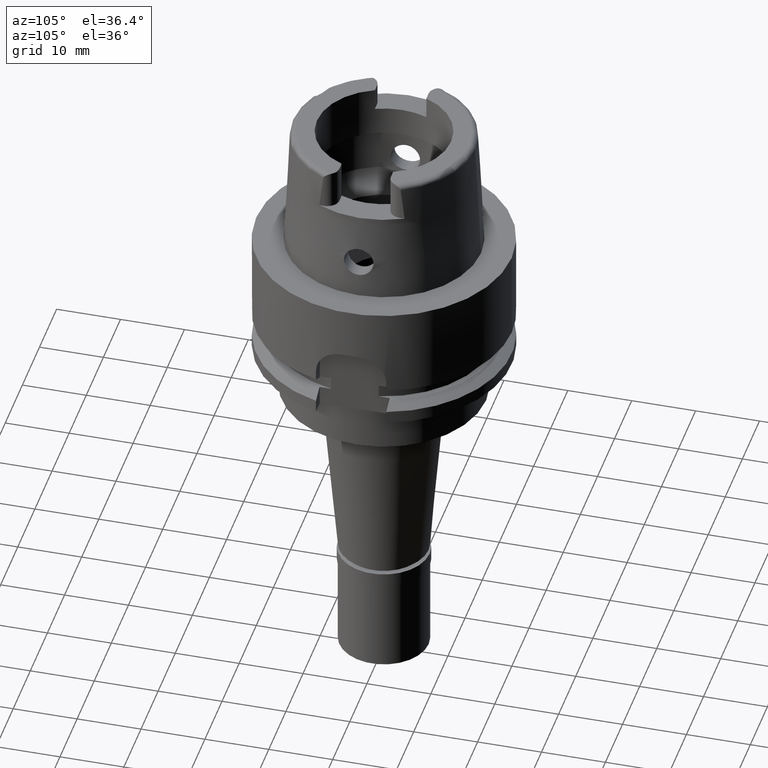
[diagram: clean part render]
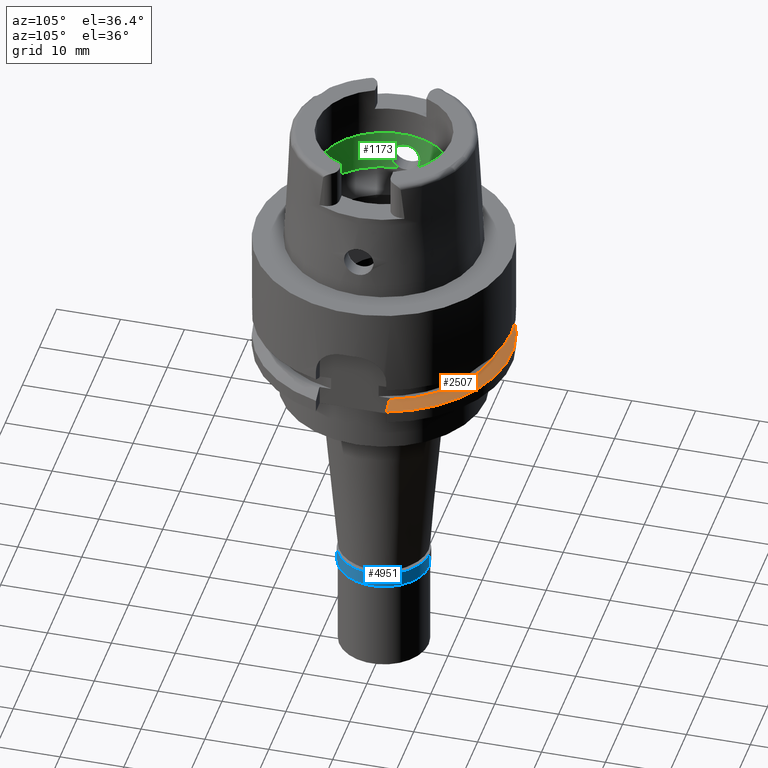
[diagram: same view with three faces highlighted in distinct colors, each labeled with its STEP entity id]
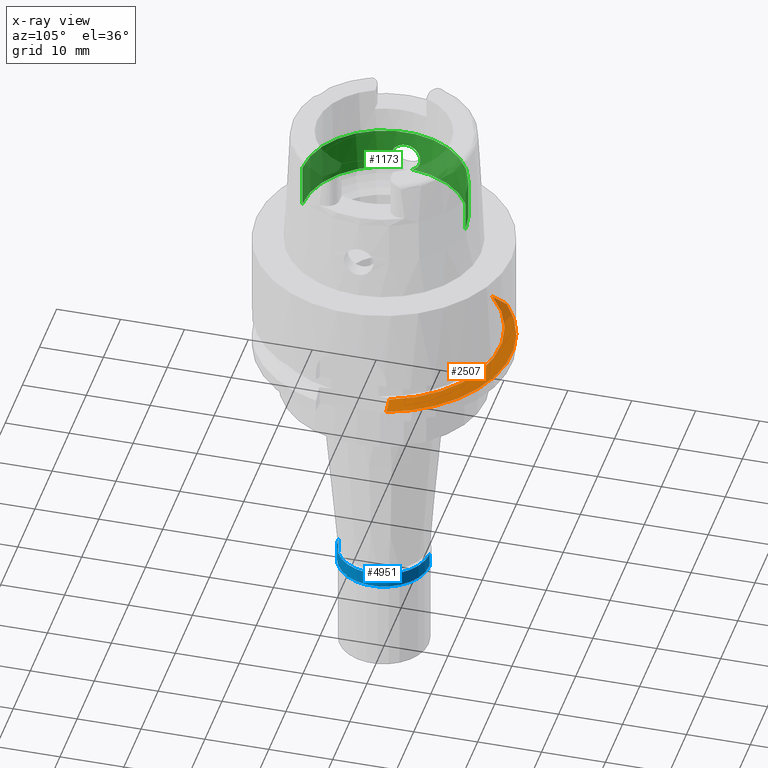
[diagram: x-ray of the same camera — body ghosted, the three highlighted faces saturated]
A machine part, auxiliary view with three faces highlighted in distinct colors.
The next image is the same camera in x-ray (body ghosted, the three faces saturated) — at least one of them is partly hidden behind the body in this view.
Their STEP definitions:

[orange] entity #2507 — the highlighted conical surface has half-angle 60 deg.
#141 = CIRCLE ( 'NONE', #2425, 18.23205080757000118 ) ;
#629 = VERTEX_POINT ( 'NONE', #1734 ) ;
#657 = CARTESIAN_POINT ( 'NONE',  ( 17.98589097578000207, 5.500000224926999692, -17.33238542091000056 ) ) ;
#768 = B_SPLINE_CURVE_WITH_KNOTS ( 'NONE', 3,
 ( #2679, #2593, #1846, #657, #3482, #2726 ),
 .UNSPECIFIED., .F., .F.,
 ( 4, 1, 1, 4 ),
 ( 0.0000000000000000000, 0.3333333333333000081, 0.6666666666667000474, 1.000000000000000000 ),
 .UNSPECIFIED. ) ;
#884 = FACE_OUTER_BOUND ( 'NONE', #2700, .T. ) ;
#903 = AXIS2_PLACEMENT_3D ( 'NONE', #4914, #1765, #2153 ) ;
#1211 = EDGE_CURVE ( 'NONE', #2823, #3265, #768, .T. ) ;
#1512 = CARTESIAN_POINT ( 'NONE',  ( 0.0000000000000000000, 1.010206699502999904E-14, -17.00000000000000000 ) ) ;
#1534 = B_SPLINE_CURVE_WITH_KNOTS ( 'NONE', 3,
 ( #5041, #3440, #3042, #4721 ),
 .UNSPECIFIED., .F., .F.,
 ( 4, 4 ),
 ( 0.0000000000000000000, 1.000000000000000000 ),
 .UNSPECIFIED. ) ;
#1734 = CARTESIAN_POINT ( 'NONE',  ( -11.99999819327999973, 16.00000135504000198, -18.02071908005000367 ) ) ;
#1765 = DIRECTION ( 'NONE',  ( 0.0000000000000000000, 0.0000000000000000000, -1.000000000000000000 ) ) ;
#1841 = ORIENTED_EDGE ( 'NONE', *, *, #4741, .T. ) ;
#1846 = CARTESIAN_POINT ( 'NONE',  ( 18.60128256371000077, 5.499999979625999735, -17.67263978635000043 ) ) ;
#1929 = AXIS2_PLACEMENT_3D ( 'NONE', #4569, #3737, #3686 ) ;
#2007 = CIRCLE ( 'NONE', #903, 20.00000000000000000 ) ;
#2153 = DIRECTION ( 'NONE',  ( -0.5999999999999999778, 0.8000000000000000444, 0.0000000000000000000 ) ) ;
#2425 = AXIS2_PLACEMENT_3D ( 'NONE', #1512, #4720, #4773 ) ;
#2507 = ADVANCED_FACE ( 'NONE', ( #884 ), #3291, .T. ) ;
#2570 = EDGE_CURVE ( 'NONE', #629, #2823, #2007, .T. ) ;
#2593 = CARTESIAN_POINT ( 'NONE',  ( 19.01852023937000169, 5.499999897587000142, -17.90395393955000003 ) ) ;
#2679 = CARTESIAN_POINT ( 'NONE',  ( 19.22888455231999671, 5.499999897587000142, -18.02072508398000039 ) ) ;
#2700 = EDGE_LOOP ( 'NONE', ( #1841, #3948, #4001, #2783 ) ) ;
#2726 = CARTESIAN_POINT ( 'NONE',  ( 17.38269052017999883, 5.499999488751999621, -17.00000000000000000 ) ) ;
#2783 = ORIENTED_EDGE ( 'NONE', *, *, #2570, .F. ) ;
#2823 = VERTEX_POINT ( 'NONE', #3477 ) ;
#3042 = CARTESIAN_POINT ( 'NONE',  ( -11.99998262259943616, 14.45496553786137106, -17.31677611851453946 ) ) ;
#3265 = VERTEX_POINT ( 'NONE', #4450 ) ;
#3291 = CONICAL_SURFACE ( 'NONE', #1929, 19.11602540378000015, 1.047197551196400456 ) ;
#3401 = EDGE_CURVE ( 'NONE', #3973, #3265, #141, .T. ) ;
#3440 = CARTESIAN_POINT ( 'NONE',  ( -11.99999639444755672, 15.21253450628815962, -17.65700993054392143 ) ) ;
#3477 = CARTESIAN_POINT ( 'NONE',  ( 19.22888455231999671, 5.499999897587000142, -18.02072508398000039 ) ) ;
#3482 = CARTESIAN_POINT ( 'NONE',  ( 17.58259270557999798, 5.499999488751999621, -17.11003686802000345 ) ) ;
#3686 = DIRECTION ( 'NONE',  ( 0.0000000000000000000, -1.000000000000000000, 0.0000000000000000000 ) ) ;
#3737 = DIRECTION ( 'NONE',  ( 0.0000000000000000000, 0.0000000000000000000, -1.000000000000000000 ) ) ;
#3948 = ORIENTED_EDGE ( 'NONE', *, *, #3401, .T. ) ;
#3973 = VERTEX_POINT ( 'NONE', #5199 ) ;
#4001 = ORIENTED_EDGE ( 'NONE', *, *, #1211, .F. ) ;
#4450 = CARTESIAN_POINT ( 'NONE',  ( 17.38269052017999883, 5.499999488751999621, -17.00000000000000000 ) ) ;
#4569 = CARTESIAN_POINT ( 'NONE',  ( 0.0000000000000000000, 1.010206699502999904E-14, -17.51036297107999928 ) ) ;
#4720 = DIRECTION ( 'NONE',  ( 0.0000000000000000000, 0.0000000000000000000, -1.000000000000000000 ) ) ;
#4721 = CARTESIAN_POINT ( 'NONE',  ( -11.99999138309999935, 13.72624503115999950, -17.00000000000000000 ) ) ;
#4741 = EDGE_CURVE ( 'NONE', #629, #3973, #1534, .T. ) ;
#4773 = DIRECTION ( 'NONE',  ( 0.0000000000000000000, 1.000000000000000000, 0.0000000000000000000 ) ) ;
#4914 = CARTESIAN_POINT ( 'NONE',  ( 0.0000000000000000000, 1.010206699502999904E-14, -18.02072594216000212 ) ) ;
#5041 = CARTESIAN_POINT ( 'NONE',  ( -11.99999819327999973, 16.00000135504000198, -18.02071908005000367 ) ) ;
#5199 = CARTESIAN_POINT ( 'NONE',  ( -11.99999138309999935, 13.72624503115999950, -17.00000000000000000 ) ) ;

[blue] entity #4951 — the highlighted cylindrical surface (partial cylindrical patch) has radius 7.15 mm, axis along (0, 0, 1).
#218 = EDGE_CURVE ( 'NONE', #1670, #2180, #3602, .T. ) ;
#376 = CARTESIAN_POINT ( 'NONE',  ( 0.0000000000000000000, 0.0000000000000000000, -17.85000000000000142 ) ) ;
#606 = CARTESIAN_POINT ( 'NONE',  ( 0.0000000000000000000, 0.0000000000000000000, 1.776356839399999922E-14 ) ) ;
#728 = CARTESIAN_POINT ( 'NONE',  ( 0.0000000000000000000, 7.150000000000000355, 1.776356839399999922E-14 ) ) ;
#748 = EDGE_CURVE ( 'NONE', #2180, #4247, #4462, .T. ) ;
#1189 = DIRECTION ( 'NONE',  ( 0.0000000000000000000, 0.0000000000000000000, 1.000000000000000000 ) ) ;
#1354 = CIRCLE ( 'NONE', #4089, 7.150000000000000355 ) ;
#1483 = CYLINDRICAL_SURFACE ( 'NONE', #5020, 7.150000000000000355 ) ;
#1513 = FACE_OUTER_BOUND ( 'NONE', #3161, .T. ) ;
#1627 = CARTESIAN_POINT ( 'NONE',  ( 0.0000000000000000000, -7.150000000000000355, 0.0000000000000000000 ) ) ;
#1670 = VERTEX_POINT ( 'NONE', #728 ) ;
#1676 = LINE ( 'NONE', #2498, #4749 ) ;
#1963 = DIRECTION ( 'NONE',  ( 0.0000000000000000000, 1.000000000000000000, 0.0000000000000000000 ) ) ;
#2180 = VERTEX_POINT ( 'NONE', #4129 ) ;
#2191 = DIRECTION ( 'NONE',  ( 0.0000000000000000000, 0.0000000000000000000, -1.000000000000000000 ) ) ;
#2498 = CARTESIAN_POINT ( 'NONE',  ( 0.0000000000000000000, 7.150000000000000355, 0.0000000000000000000 ) ) ;
#2602 = ORIENTED_EDGE ( 'NONE', *, *, #4957, .T. ) ;
#2923 = EDGE_CURVE ( 'NONE', #1670, #3069, #1676, .T. ) ;
#3011 = VECTOR ( 'NONE', #3765, 1000.000000000000000 ) ;
#3069 = VERTEX_POINT ( 'NONE', #4330 ) ;
#3161 = EDGE_LOOP ( 'NONE', ( #4072, #3883, #2602, #4966 ) ) ;
#3181 = AXIS2_PLACEMENT_3D ( 'NONE', #606, #2191, #3405 ) ;
#3228 = CARTESIAN_POINT ( 'NONE',  ( 0.0000000000000000000, 0.0000000000000000000, -2.299999999999999822 ) ) ;
#3405 = DIRECTION ( 'NONE',  ( 0.0000000000000000000, 1.000000000000000000, 0.0000000000000000000 ) ) ;
#3543 = DIRECTION ( 'NONE',  ( 0.0000000000000000000, 0.0000000000000000000, -1.000000000000000000 ) ) ;
#3550 = DIRECTION ( 'NONE',  ( 0.0000000000000000000, -1.000000000000000000, 0.0000000000000000000 ) ) ;
#3602 = CIRCLE ( 'NONE', #3181, 7.150000000000000355 ) ;
#3765 = DIRECTION ( 'NONE',  ( 0.0000000000000000000, 0.0000000000000000000, -1.000000000000000000 ) ) ;
#3883 = ORIENTED_EDGE ( 'NONE', *, *, #748, .T. ) ;
#3981 = DIRECTION ( 'NONE',  ( 0.0000000000000000000, 0.0000000000000000000, 1.000000000000000000 ) ) ;
#4072 = ORIENTED_EDGE ( 'NONE', *, *, #218, .T. ) ;
#4089 = AXIS2_PLACEMENT_3D ( 'NONE', #3228, #1189, #3550 ) ;
#4129 = CARTESIAN_POINT ( 'NONE',  ( 0.0000000000000000000, -7.150000000000000355, 1.776356839399999922E-14 ) ) ;
#4247 = VERTEX_POINT ( 'NONE', #5136 ) ;
#4330 = CARTESIAN_POINT ( 'NONE',  ( 0.0000000000000000000, 7.150000000000000355, -2.299999999999999822 ) ) ;
#4462 = LINE ( 'NONE', #1627, #3011 ) ;
#4749 = VECTOR ( 'NONE', #3543, 1000.000000000000000 ) ;
#4951 = ADVANCED_FACE ( 'NONE', ( #1513 ), #1483, .T. ) ;
#4957 = EDGE_CURVE ( 'NONE', #4247, #3069, #1354, .T. ) ;
#4966 = ORIENTED_EDGE ( 'NONE', *, *, #2923, .F. ) ;
#5020 = AXIS2_PLACEMENT_3D ( 'NONE', #376, #3981, #1963 ) ;
#5136 = CARTESIAN_POINT ( 'NONE',  ( 0.0000000000000000000, -7.150000000000000355, -2.299999999999999822 ) ) ;

[green] entity #1173 — the highlighted cylindrical surface (partial cylindrical patch) has radius 12.75 mm, axis along (0, 0, -1).
#12 = LINE ( 'NONE', #442, #573 ) ;
#147 = CARTESIAN_POINT ( 'NONE',  ( -12.58339085207465402, 2.054673809516300853, 4.966333112770533020 ) ) ;
#172 = CARTESIAN_POINT ( 'NONE',  ( -12.62890984003583661, 1.757197363155238001, 4.506232795585503936 ) ) ;
#175 = VERTEX_POINT ( 'NONE', #2455 ) ;
#192 = CARTESIAN_POINT ( 'NONE',  ( 0.0000000000000000000, 12.75000000000000000, 3.933312163512999504 ) ) ;
#213 = DIRECTION ( 'NONE',  ( 0.0000000000000000000, 1.000000000000000000, 0.0000000000000000000 ) ) ;
#226 = CARTESIAN_POINT ( 'NONE',  ( -12.75000000000000000, 0.0000000000000000000, 8.300000000000000711 ) ) ;
#252 = CARTESIAN_POINT ( 'NONE',  ( -12.58714353731488345, 2.031699938007257789, 7.078591831128857592 ) ) ;
#284 = CARTESIAN_POINT ( 'NONE',  ( -12.73074778830299003, -0.7001122496124811967, 8.190963658659171642 ) ) ;
#314 = CARTESIAN_POINT ( 'NONE',  ( -12.56851343450449932, -2.144397070127626037, 5.167733796194998952 ) ) ;
#329 = DIRECTION ( 'NONE',  ( 0.0000000000000000000, 0.0000000000000000000, -1.000000000000000000 ) ) ;
#338 = CARTESIAN_POINT ( 'NONE',  ( -12.69912736120991070, -1.137390012807617312, 8.000126845119376995 ) ) ;
#361 = CARTESIAN_POINT ( 'NONE',  ( -12.61490092618660164, -1.856081227164956271, 7.358680595117058409 ) ) ;
#367 = ORIENTED_EDGE ( 'NONE', *, *, #4309, .F. ) ;
#377 = AXIS2_PLACEMENT_3D ( 'NONE', #4269, #3864, #213 ) ;
#386 = CARTESIAN_POINT ( 'NONE',  ( -12.70998420979999999, -1.009356917307999923, 3.933312163512999504 ) ) ;
#411 = CARTESIAN_POINT ( 'NONE',  ( -12.61201834144508460, -1.875045042398655104, 7.332387545107639681 ) ) ;
#442 = CARTESIAN_POINT ( 'NONE',  ( 0.0000000000000000000, -12.75000000000000000, 3.933312163512999504 ) ) ;
#573 = VECTOR ( 'NONE', #3693, 1000.000000000000000 ) ;
#596 = CARTESIAN_POINT ( 'NONE',  ( 0.0000000000000000000, 12.75000000000000000, 10.69831216350999981 ) ) ;
#619 = CARTESIAN_POINT ( 'NONE',  ( -12.58060164487366883, 2.071512878578868566, 5.000554884107443421 ) ) ;
#648 = CARTESIAN_POINT ( 'NONE',  ( -12.55047042738125818, 2.246830512400804114, 6.492508087454291754 ) ) ;
#703 = CARTESIAN_POINT ( 'NONE',  ( -12.54165086587091160, -2.296204944674459458, 6.276387831043508392 ) ) ;
#705 = ORIENTED_EDGE ( 'NONE', *, *, #1530, .F. ) ;
#752 = CARTESIAN_POINT ( 'NONE',  ( -12.70378272042165513, -1.087447066323713685, 3.971450885138717357 ) ) ;
#773 = CARTESIAN_POINT ( 'NONE',  ( -12.57158518907040268, -2.125954961422567457, 5.121207051464666371 ) ) ;
#800 = CARTESIAN_POINT ( 'NONE',  ( -12.66022189500177753, -1.515228185652597759, 4.261196090938788039 ) ) ;
#880 = ORIENTED_EDGE ( 'NONE', *, *, #4442, .T. ) ;
#928 = VERTEX_POINT ( 'NONE', #2906 ) ;
#954 = VERTEX_POINT ( 'NONE', #2478 ) ;
#994 = CARTESIAN_POINT ( 'NONE',  ( -12.59815358434429378, 1.961953374536287154, 7.200439409824328507 ) ) ;
#1073 = CARTESIAN_POINT ( 'NONE',  ( -12.59109067057380571, 2.007030690845851062, 7.124272591060776705 ) ) ;
#1077 = CARTESIAN_POINT ( 'NONE',  ( -12.74252681395840447, -0.4392686981485867115, 8.258573376009319844 ) ) ;
#1078 = AXIS2_PLACEMENT_3D ( 'NONE', #1880, #329, #1856 ) ;
#1082 = CYLINDRICAL_SURFACE ( 'NONE', #2924, 12.75000000000000000 ) ;
#1102 = CARTESIAN_POINT ( 'NONE',  ( -12.67023201617682737, -1.424015792867055152, 7.806168507297036818 ) ) ;
#1154 = CARTESIAN_POINT ( 'NONE',  ( -12.56751562929372668, -2.146575126956791202, 6.828477016908312436 ) ) ;
#1173 = ADVANCED_FACE ( 'NONE', ( #4265 ), #1082, .F. ) ;
#1177 = CARTESIAN_POINT ( 'NONE',  ( -12.55267960710684072, -2.234411915910970325, 6.545601289167522374 ) ) ;
#1357 = CARTESIAN_POINT ( 'NONE',  ( -12.54927537182861563, 2.253593546476944987, 6.460711797080909591 ) ) ;
#1404 = VERTEX_POINT ( 'NONE', #3764 ) ;
#1412 = CARTESIAN_POINT ( 'NONE',  ( -12.55621970482495797, 2.214610694453424067, 6.631256330362637286 ) ) ;
#1438 = CARTESIAN_POINT ( 'NONE',  ( -12.57950435357563634, 2.078139777568544400, 5.014427681384072244 ) ) ;
#1494 = CARTESIAN_POINT ( 'NONE',  ( -12.55036732577876180, -2.251928299567436564, 5.514126242579840742 ) ) ;
#1499 = DIRECTION ( 'NONE',  ( 0.0000000000000000000, -1.000000000000000000, 0.0000000000000000000 ) ) ;
#1501 = VECTOR ( 'NONE', #2146, 1000.000000000000000 ) ;
#1520 = CARTESIAN_POINT ( 'NONE',  ( -12.57934465559501724, -2.079106256937232278, 5.016473343306235400 ) ) ;
#1530 = EDGE_CURVE ( 'NONE', #1404, #175, #1532, .T. ) ;
#1532 = B_SPLINE_CURVE_WITH_KNOTS ( 'NONE', 3,
 ( #2529, #4174, #3794, #1626, #3262, #172, #3070, #4257, #2182, #3018, #5105, #147, #1787, #619, #2697, #1811, #1438, #4650, #5019, #4729, #2669, #3880, #1863, #2986, #4700, #1357, #648, #1412, #4620, #3419, #5078, #252, #1073, #3824, #994, #2615, #4282, #2265, #2584, #3447, #3475, #3048, #5047, #3100, #226 ),
 .UNSPECIFIED., .F., .F.,
 ( 4, 2, 2, 2, 2, 2, 1, 1, 2, 2, 2, 2, 2, 2, 2, 2, 2, 1, 2, 2, 2, 2, 2, 4 ),
 ( 0.0000000000000000000, 0.06249999999999997224, 0.1249999999999999445, 0.1874999999999999167, 0.2187499999999998057, 0.2343749999999996114, 0.2421874999999995837, 0.2460937499999995837, 0.2480468749999996392, 0.2499999999999996947, 0.3749999999999982236, 0.4374999999999977240, 0.4687499999999974465, 0.4843749999999973355, 0.4999999999999972244, 0.5624999999999953371, 0.5937499999999944489, 0.6093749999999940048, 0.6171874999999937828, 0.6249999999999935607, 0.7499999999999956701, 0.8749999999999978906, 0.9374999999999988898, 1.000000000000000000 ),
 .UNSPECIFIED. ) ;
#1573 = CARTESIAN_POINT ( 'NONE',  ( -12.62930288638894005, -1.756336968320934666, 7.486432769834232559 ) ) ;
#1575 = VERTEX_POINT ( 'NONE', #596 ) ;
#1592 = CIRCLE ( 'NONE', #4581, 12.75000000000000000 ) ;
#1626 = CARTESIAN_POINT ( 'NONE',  ( -12.67336408137441062, 1.397295630105627851, 4.168512976474513465 ) ) ;
#1787 = CARTESIAN_POINT ( 'NONE',  ( -12.58205962764409591, 2.062713759146912018, 4.982430135879939215 ) ) ;
#1811 = CARTESIAN_POINT ( 'NONE',  ( -12.57959872648469712, 2.077569830606403656, 5.013231827120160133 ) ) ;
#1856 = DIRECTION ( 'NONE',  ( -0.9968615066513395462, 0.07916524841634305087, 0.0000000000000000000 ) ) ;
#1863 = CARTESIAN_POINT ( 'NONE',  ( -12.54404417961828244, 2.283891768097304542, 6.278648810148011350 ) ) ;
#1880 = CARTESIAN_POINT ( 'NONE',  ( 0.0000000000000000000, 1.272815980657999902E-14, 3.933312163512999504 ) ) ;
#1893 = CARTESIAN_POINT ( 'NONE',  ( -12.72941224821939521, -0.7236985289661657106, 8.183192412584958220 ) ) ;
#1922 = CARTESIAN_POINT ( 'NONE',  ( -12.57546371657647910, -2.102566906752954878, 5.067419953103866170 ) ) ;
#1970 = CARTESIAN_POINT ( 'NONE',  ( -12.72850729209716469, -0.7394114468207946267, 8.177920885502208748 ) ) ;
#1998 = CARTESIAN_POINT ( 'NONE',  ( -12.68522438431547883, -1.283228875991751172, 7.909068501356578018 ) ) ;
#2039 = EDGE_CURVE ( 'NONE', #3910, #954, #12, .T. ) ;
#2146 = DIRECTION ( 'NONE',  ( 0.0000000000000000000, 5.277867327710000452E-14, 1.000000000000000000 ) ) ;
#2170 = CIRCLE ( 'NONE', #1078, 12.75000000000000533 ) ;
#2182 = CARTESIAN_POINT ( 'NONE',  ( -12.59456626305833460, 1.986262606623955040, 4.839086032265119464 ) ) ;
#2204 = LINE ( 'NONE', #192, #1501 ) ;
#2245 = EDGE_CURVE ( 'NONE', #3910, #2289, #1592, .T. ) ;
#2265 = CARTESIAN_POINT ( 'NONE',  ( -12.64567728126235124, 1.626829713840806546, 7.646006352461899525 ) ) ;
#2276 = DIRECTION ( 'NONE',  ( 0.0000000000000000000, -1.000000000000000000, 0.0000000000000000000 ) ) ;
#2289 = VERTEX_POINT ( 'NONE', #3890 ) ;
#2293 = CARTESIAN_POINT ( 'NONE',  ( -12.73598777617200639, -0.5975630896463138830, 8.221257218836903746 ) ) ;
#2322 = CARTESIAN_POINT ( 'NONE',  ( -12.53916547075398924, -2.314083527116169048, 6.024290614849178382 ) ) ;
#2347 = CARTESIAN_POINT ( 'NONE',  ( -12.60324259564500515, -1.930416244530299696, 7.250782113129872641 ) ) ;
#2389 = CARTESIAN_POINT ( 'NONE',  ( -12.61348512500698504, -1.876585198931194576, 4.626737480959002724 ) ) ;
#2417 = CARTESIAN_POINT ( 'NONE',  ( -12.67345645984506497, -1.396478114058297360, 4.167918971992538246 ) ) ;
#2455 = CARTESIAN_POINT ( 'NONE',  ( -12.75000000000000000, 0.0000000000000000000, 8.300000000000000711 ) ) ;
#2478 = CARTESIAN_POINT ( 'NONE',  ( 0.0000000000000000000, -12.75000000000000000, 10.69831216350999981 ) ) ;
#2495 = B_SPLINE_CURVE_WITH_KNOTS ( 'NONE', 3,
 ( #3075, #3104, #4733, #1077, #2701, #2293, #3937, #284, #1893, #1970, #4759, #3561, #3184, #338, #5210, #1998, #3214, #5165, #4808, #2748, #1102, #3235, #4456, #1573, #4388, #361, #411, #5237, #2347, #2820, #2722, #1154, #4064, #4834, #3605, #3134, #1177, #4360, #703, #2322, #3965, #1494, #2775, #2797, #314, #773, #1922, #4413, #4435, #5190, #1520, #3633, #2389, #800, #2417, #4035, #752, #386 ),
 .UNSPECIFIED., .F., .F.,
 ( 4, 2, 2, 1, 1, 2, 2, 2, 2, 1, 1, 2, 2, 2, 2, 2, 2, 2, 2, 1, 2, 2, 2, 2, 2, 1, 1, 1, 2, 2, 2, 2, 4 ),
 ( 0.0000000000000000000, 0.06249999999999748812, 0.09374999999999629463, 0.1093749999999958089, 0.1171874999999955730, 0.1210937499999953093, 0.1249999999999950595, 0.1874999999999928668, 0.2187499999999917843, 0.2343749999999912570, 0.2421874999999909794, 0.2460937499999911460, 0.2499999999999912847, 0.3124999999999934497, 0.3437499999999945044, 0.3593749999999950595, 0.3749999999999955591, 0.4374999999999968359, 0.4687499999999975020, 0.4843749999999978351, 0.4921874999999978351, 0.4999999999999977796, 0.6249999999999935607, 0.6874999999999912292, 0.7187499999999901190, 0.7343749999999896749, 0.7421874999999894529, 0.7460937499999893419, 0.7480468749999893419, 0.7499999999999893419, 0.8749999999999945599, 0.9374999999999973355, 1.000000000000000000 ),
 .UNSPECIFIED. ) ;
#2529 = CARTESIAN_POINT ( 'NONE',  ( -12.70998420979999999, 1.009356917307999923, 3.933312163512999504 ) ) ;
#2563 = ORIENTED_EDGE ( 'NONE', *, *, #2039, .F. ) ;
#2584 = CARTESIAN_POINT ( 'NONE',  ( -12.69448478771223421, 1.223846663496938714, 7.964207518168004540 ) ) ;
#2615 = CARTESIAN_POINT ( 'NONE',  ( -12.59976235622063356, 1.951582338840974540, 7.217205095512205126 ) ) ;
#2669 = CARTESIAN_POINT ( 'NONE',  ( -12.54097692865108549, 2.303203091751076403, 6.029752746036649569 ) ) ;
#2697 = CARTESIAN_POINT ( 'NONE',  ( -12.57999717634318770, 2.075162950514125360, 5.008180179232109452 ) ) ;
#2701 = CARTESIAN_POINT ( 'NONE',  ( -12.74019144332040732, -0.5026576355909811999, 8.245349953738385196 ) ) ;
#2722 = CARTESIAN_POINT ( 'NONE',  ( -12.57980447228955789, -2.071881820707820676, 7.006946619180924429 ) ) ;
#2748 = CARTESIAN_POINT ( 'NONE',  ( -12.67116948348865257, -1.415650000683130516, 7.812738732577102496 ) ) ;
#2775 = CARTESIAN_POINT ( 'NONE',  ( -12.55928504294682568, -2.199458483297776379, 5.324207151647034841 ) ) ;
#2797 = CARTESIAN_POINT ( 'NONE',  ( -12.56270685548225252, -2.179144367232888513, 5.261248932163943515 ) ) ;
#2820 = CARTESIAN_POINT ( 'NONE',  ( -12.58942699396154907, -2.013014049562909857, 7.119454681090645387 ) ) ;
#2906 = CARTESIAN_POINT ( 'NONE',  ( 0.0000000000000000000, 12.75000000000000000, 3.933312163512999504 ) ) ;
#2924 = AXIS2_PLACEMENT_3D ( 'NONE', #3539, #5058, #1499 ) ;
#2986 = CARTESIAN_POINT ( 'NONE',  ( -12.54637797245567121, 2.270223910848022442, 6.370182504393158140 ) ) ;
#2993 = EDGE_CURVE ( 'NONE', #928, #1575, #2204, .T. ) ;
#3018 = CARTESIAN_POINT ( 'NONE',  ( -12.58815436649538810, 2.025767500900501172, 4.910501891679487585 ) ) ;
#3048 = CARTESIAN_POINT ( 'NONE',  ( -12.74067341772250828, 0.5036985138315329680, 8.247816371795414270 ) ) ;
#3070 = CARTESIAN_POINT ( 'NONE',  ( -12.61572278289819238, 1.848910386933523942, 4.625855687215840284 ) ) ;
#3075 = CARTESIAN_POINT ( 'NONE',  ( -12.75000000000000000, 0.0000000000000000000, 8.300000000000000711 ) ) ;
#3100 = CARTESIAN_POINT ( 'NONE',  ( -12.75000000000000533, 0.1247224017202993446, 8.300000000000006040 ) ) ;
#3104 = CARTESIAN_POINT ( 'NONE',  ( -12.75000000000000178, -0.1235788800322188685, 8.300000000000000711 ) ) ;
#3134 = CARTESIAN_POINT ( 'NONE',  ( -12.55410214024842830, -2.226276468947099296, 6.577901774109259136 ) ) ;
#3184 = CARTESIAN_POINT ( 'NONE',  ( -12.71364363941995990, -0.9665029977499738356, 8.091058513420202658 ) ) ;
#3214 = CARTESIAN_POINT ( 'NONE',  ( -12.68074871551950267, -1.327314097431119722, 7.878975069167185374 ) ) ;
#3235 = CARTESIAN_POINT ( 'NONE',  ( -12.65804833476578040, -1.531885672375924212, 7.720503992696741591 ) ) ;
#3260 = ORIENTED_EDGE ( 'NONE', *, *, #2245, .T. ) ;
#3262 = CARTESIAN_POINT ( 'NONE',  ( -12.65992181603151501, 1.517677045631775412, 4.263411557326715950 ) ) ;
#3361 = EDGE_CURVE ( 'NONE', #1404, #928, #2170, .T. ) ;
#3419 = CARTESIAN_POINT ( 'NONE',  ( -12.57501212646372579, 2.105911532237878081, 6.926982739578415149 ) ) ;
#3447 = CARTESIAN_POINT ( 'NONE',  ( -12.71373428083069967, 0.9952891789713514958, 8.089398377045332822 ) ) ;
#3475 = CARTESIAN_POINT ( 'NONE',  ( -12.73487713034869806, 0.6306082967217595536, 8.215599175855139435 ) ) ;
#3539 = CARTESIAN_POINT ( 'NONE',  ( 0.0000000000000000000, 1.525297588337999954E-14, 24.54999999999999716 ) ) ;
#3561 = CARTESIAN_POINT ( 'NONE',  ( -12.72151507984060714, -0.8569763171209208164, 8.137106133916697459 ) ) ;
#3605 = CARTESIAN_POINT ( 'NONE',  ( -12.55630296932057277, -2.213574899880633495, 6.626109402969795781 ) ) ;
#3633 = CARTESIAN_POINT ( 'NONE',  ( -12.59196317393901232, -2.002732651909304273, 4.855521370198879083 ) ) ;
#3693 = DIRECTION ( 'NONE',  ( 0.0000000000000000000, -5.251609281303000335E-14, 1.000000000000000000 ) ) ;
#3764 = CARTESIAN_POINT ( 'NONE',  ( -12.70998420979999999, 1.009356917307999923, 3.933312163512999504 ) ) ;
#3794 = CARTESIAN_POINT ( 'NONE',  ( -12.69522020862985023, 1.182811521075203043, 4.023200389299336877 ) ) ;
#3824 = CARTESIAN_POINT ( 'NONE',  ( -12.59529422883569616, 1.980268815234603741, 7.169979162174714205 ) ) ;
#3864 = DIRECTION ( 'NONE',  ( 0.0000000000000000000, 0.0000000000000000000, 1.000000000000000000 ) ) ;
#3880 = CARTESIAN_POINT ( 'NONE',  ( -12.54293920295514475, 2.290606963671554919, 6.216857476044733488 ) ) ;
#3890 = CARTESIAN_POINT ( 'NONE',  ( -12.70998420979999999, -1.009356917307999923, 3.933312163512999504 ) ) ;
#3910 = VERTEX_POINT ( 'NONE', #5094 ) ;
#3937 = CARTESIAN_POINT ( 'NONE',  ( -12.73371078979995907, -0.6449708360643322536, 8.208146947667950499 ) ) ;
#3965 = CARTESIAN_POINT ( 'NONE',  ( -12.54621914158435203, -2.275590675021599285, 5.642117015122566137 ) ) ;
#4035 = CARTESIAN_POINT ( 'NONE',  ( -12.69523687255500022, -1.182646589535557125, 4.023128972216798438 ) ) ;
#4064 = CARTESIAN_POINT ( 'NONE',  ( -12.56377683821381197, -2.169205097363569035, 6.767376410723621838 ) ) ;
#4117 = CIRCLE ( 'NONE', #377, 12.75000000000000000 ) ;
#4174 = CARTESIAN_POINT ( 'NONE',  ( -12.70378423022914305, 1.087428054604293814, 3.971441599938425160 ) ) ;
#4233 = ORIENTED_EDGE ( 'NONE', *, *, #3361, .T. ) ;
#4242 = EDGE_LOOP ( 'NONE', ( #705, #4233, #4431, #880, #2563, #3260, #367 ) ) ;
#4257 = CARTESIAN_POINT ( 'NONE',  ( -12.59942059348201937, 1.955753264907892142, 4.787888322134033814 ) ) ;
#4265 = FACE_OUTER_BOUND ( 'NONE', #4242, .T. ) ;
#4269 = CARTESIAN_POINT ( 'NONE',  ( 0.0000000000000000000, 1.363617650911000050E-14, 10.69831216350999981 ) ) ;
#4282 = CARTESIAN_POINT ( 'NONE',  ( -12.62247535298582513, 1.804358610467007740, 7.449596039576481310 ) ) ;
#4309 = EDGE_CURVE ( 'NONE', #175, #2289, #2495, .T. ) ;
#4360 = CARTESIAN_POINT ( 'NONE',  ( -12.55192868066588119, -2.238660647659592051, 6.527852979368065078 ) ) ;
#4365 = DIRECTION ( 'NONE',  ( 0.0000000000000000000, 0.0000000000000000000, -1.000000000000000000 ) ) ;
#4388 = CARTESIAN_POINT ( 'NONE',  ( -12.62354502590939376, -1.797548367054847773, 7.436322315368556701 ) ) ;
#4413 = CARTESIAN_POINT ( 'NONE',  ( -12.57747668379098016, -2.090404994828133134, 5.040661377615037075 ) ) ;
#4431 = ORIENTED_EDGE ( 'NONE', *, *, #2993, .T. ) ;
#4435 = CARTESIAN_POINT ( 'NONE',  ( -12.57835517762465649, -2.085092517644023591, 5.029223569441624520 ) ) ;
#4442 = EDGE_CURVE ( 'NONE', #1575, #954, #4117, .T. ) ;
#4456 = CARTESIAN_POINT ( 'NONE',  ( -12.64656184982060694, -1.626575742912583777, 7.631275284763333389 ) ) ;
#4581 = AXIS2_PLACEMENT_3D ( 'NONE', #4766, #4365, #2276 ) ;
#4620 = CARTESIAN_POINT ( 'NONE',  ( -12.56264259346776413, 2.178874184783645696, 6.747762536664258626 ) ) ;
#4650 = CARTESIAN_POINT ( 'NONE',  ( -12.56018094514199213, 2.194968948027079314, 5.261938506772164459 ) ) ;
#4700 = CARTESIAN_POINT ( 'NONE',  ( -12.54726862470857540, 2.265068994167529493, 6.400501790698810645 ) ) ;
#4729 = CARTESIAN_POINT ( 'NONE',  ( -12.54147228669552483, 2.301517321167697805, 5.902692428179109108 ) ) ;
#4733 = CARTESIAN_POINT ( 'NONE',  ( -12.74813170348960334, -0.2495126953617159138, 8.290018810145122430 ) ) ;
#4759 = CARTESIAN_POINT ( 'NONE',  ( -12.72795952700237265, -0.7487400715674630280, 8.174726129645403461 ) ) ;
#4766 = CARTESIAN_POINT ( 'NONE',  ( 0.0000000000000000000, 1.272815980657999902E-14, 3.933312163512999504 ) ) ;
#4808 = CARTESIAN_POINT ( 'NONE',  ( -12.67280247296122120, -1.400931878609878112, 7.824137195639072395 ) ) ;
#4834 = CARTESIAN_POINT ( 'NONE',  ( -12.55870488647197725, -2.199408462938539977, 6.673559010551504578 ) ) ;
#5019 = CARTESIAN_POINT ( 'NONE',  ( -12.54836898357026165, 2.263883516498744974, 5.519755899151547851 ) ) ;
#5047 = CARTESIAN_POINT ( 'NONE',  ( -12.74813468354450308, 0.2511173946994075257, 8.289832021836314624 ) ) ;
#5058 = DIRECTION ( 'NONE',  ( 0.0000000000000000000, 0.0000000000000000000, -1.000000000000000000 ) ) ;
#5078 = CARTESIAN_POINT ( 'NONE',  ( -12.57959117080101308, 2.078365938782266387, 6.987448697207155668 ) ) ;
#5094 = CARTESIAN_POINT ( 'NONE',  ( 0.0000000000000000000, -12.75000000000000000, 3.933312163512999504 ) ) ;
#5105 = CARTESIAN_POINT ( 'NONE',  ( -12.58616200081983472, 2.037891611401664971, 4.933414527922749038 ) ) ;
#5165 = CARTESIAN_POINT ( 'NONE',  ( -12.67523079218899262, -1.378849118641459759, 7.841024810307349213 ) ) ;
#5190 = CARTESIAN_POINT ( 'NONE',  ( -12.57894434986907761, -2.081528597908183453, 5.021605201693535747 ) ) ;
#5210 = CARTESIAN_POINT ( 'NONE',  ( -12.69383708221004525, -1.195426540693345530, 7.966171648155259355 ) ) ;
#5237 = CARTESIAN_POINT ( 'NONE',  ( -12.60625073562756349, -1.911844513387053857, 7.279023470470170842 ) ) ;